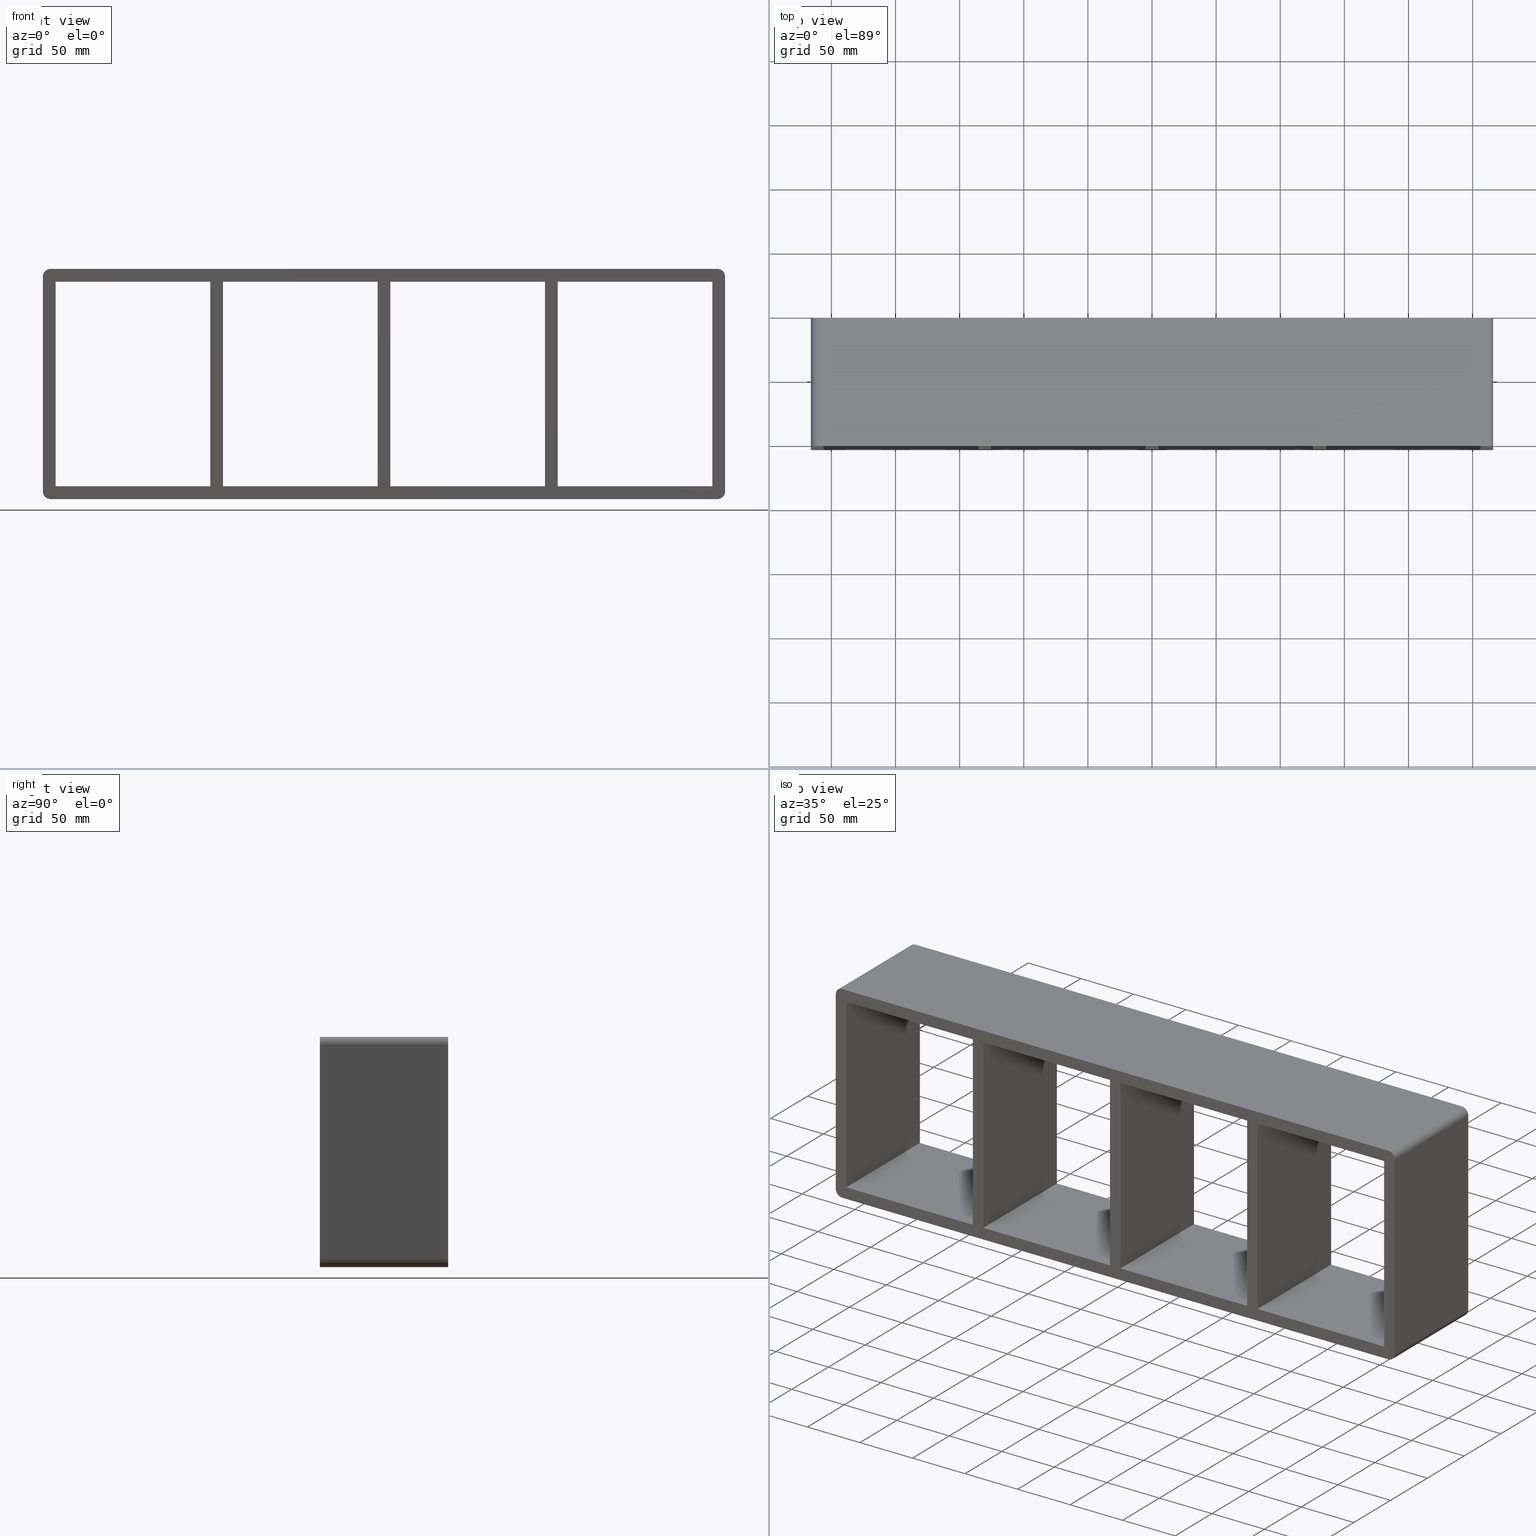
[diagram: canonical four-view strip — front | top / right | iso, engineering-drawing reading convention]
A machine part, canonical four-view strip (front | top / right | iso — engineering-drawing reading convention). The complete STEP part file that produces these views, byte-faithful:
ISO-10303-21;
HEADER;
/****************************************************************
 * Generated by software with PDElib inside                    *
 * PDElib Version v51a, created Wed 11/30/2011                  *
 * ITI Transcendata (http://www.transcendata.com/)              *
 ****************************************************************/
FILE_DESCRIPTION((''),'2;1');
FILE_NAME('C:\\RoxtecConfigurator\\CreatedFiles\\STEP\\SK4X4.stp','2013-01-29T16:34:10',(''),(''),'Autodesk Inventor 2013','Autodesk Inventor 2013','');
FILE_SCHEMA(('AUTOMOTIVE_DESIGN { 1 0 10303 214 1 1 1 1 }'));
ENDSEC;
DATA;
#5=APPLICATION_CONTEXT('automotive design');
#6=APPLICATION_PROTOCOL_DEFINITION('International Standard','automotive_design',2001,#5);
#7=PRODUCT_CONTEXT('',#5,'mechanical');
#8=PRODUCT('roxtec S_SF_G','roxtec S_SF_G',$,(#7));
#9=PRODUCT_RELATED_PRODUCT_CATEGORY('part',$,(#8));
#10=PRODUCT_DEFINITION_FORMATION('',$,#8);
#11=PRODUCT_DEFINITION_CONTEXT('part definition',#5,'design');
#12=PRODUCT_DEFINITION('',$,#10,#11);
#18=(NAMED_UNIT(*)PLANE_ANGLE_UNIT()SI_UNIT($,.RADIAN.));
#19=DIMENSIONAL_EXPONENTS(0.0,0.0,0.0,0.0,0.0,0.0,0.0);
#20=PLANE_ANGLE_MEASURE_WITH_UNIT(PLANE_ANGLE_MEASURE(0.0174532925),#18);
#24=(CONVERSION_BASED_UNIT('DEGREE',#20)NAMED_UNIT(#19)PLANE_ANGLE_UNIT());
#28=(NAMED_UNIT(*)SI_UNIT($,.STERADIAN.)SOLID_ANGLE_UNIT());
#32=(LENGTH_UNIT()NAMED_UNIT(*)SI_UNIT(.MILLI.,.METRE.));
#34=UNCERTAINTY_MEASURE_WITH_UNIT(LENGTH_MEASURE(0.01),#32,'DISTANCE_ACCURACY_VALUE','');
#36=(GEOMETRIC_REPRESENTATION_CONTEXT(3)GLOBAL_UNCERTAINTY_ASSIGNED_CONTEXT((#34))GLOBAL_UNIT_ASSIGNED_CONTEXT((#24,#28,#32))REPRESENTATION_CONTEXT('None','None'));
#37=AXIS2_PLACEMENT_3D('',#38,#39,#40);
#38=CARTESIAN_POINT('',(0.0,0.0,0.0));
#39=DIRECTION('',(0.0,0.0,1.0));
#40=DIRECTION('',(1.0,0.0,0.0));
#41=SHAPE_REPRESENTATION('',(#37),#36);
#42=PRODUCT_DEFINITION_SHAPE('','',#12);
#43=SHAPE_DEFINITION_REPRESENTATION(#42,#41);
#49=(NAMED_UNIT(*)PLANE_ANGLE_UNIT()SI_UNIT($,.RADIAN.));
#50=DIMENSIONAL_EXPONENTS(0.0,0.0,0.0,0.0,0.0,0.0,0.0);
#51=PLANE_ANGLE_MEASURE_WITH_UNIT(PLANE_ANGLE_MEASURE(0.0174532925),#49);
#55=(CONVERSION_BASED_UNIT('DEGREE',#51)NAMED_UNIT(#50)PLANE_ANGLE_UNIT());
#59=(NAMED_UNIT(*)SI_UNIT($,.STERADIAN.)SOLID_ANGLE_UNIT());
#63=(LENGTH_UNIT()NAMED_UNIT(*)SI_UNIT(.MILLI.,.METRE.));
#65=UNCERTAINTY_MEASURE_WITH_UNIT(LENGTH_MEASURE(0.000001),#63,'DISTANCE_ACCURACY_VALUE','');
#67=(GEOMETRIC_REPRESENTATION_CONTEXT(3)GLOBAL_UNCERTAINTY_ASSIGNED_CONTEXT((#65))GLOBAL_UNIT_ASSIGNED_CONTEXT((#55,#59,#63))REPRESENTATION_CONTEXT('','3D'));
#68=CARTESIAN_POINT('',(125.49999999998295,-3.0,-79.750000000000014));
#69=DIRECTION('',(-1.0,0.0,0.0));
#70=DIRECTION('',(0.0,0.0,1.0));
#71=AXIS2_PLACEMENT_3D('',#68,#69,#70);
#72=PLANE('',#71);
#73=CARTESIAN_POINT('',(125.49999999998295,-3.0,-79.750000000000014));
#74=VERTEX_POINT('',#73);
#75=CARTESIAN_POINT('',(125.4999999999829,-3.0,79.750000000000014));
#76=VERTEX_POINT('',#75);
#77=CARTESIAN_POINT('',(125.49999999998295,-3.0,-79.750000000000014));
#78=DIRECTION('',(0.0,0.0,1.0));
#79=VECTOR('',#78,159.50000000000003);
#80=LINE('',#77,#79);
#81=EDGE_CURVE('',#74,#76,#80,.T.);
#82=ORIENTED_EDGE('',*,*,#81,.T.);
#83=CARTESIAN_POINT('',(125.4999999999829,97.0,79.750000000000014));
#84=VERTEX_POINT('',#83);
#85=CARTESIAN_POINT('',(125.4999999999829,97.0,79.750000000000014));
#86=DIRECTION('',(0.0,-1.0,0.0));
#87=VECTOR('',#86,100.0);
#88=LINE('',#85,#87);
#89=EDGE_CURVE('',#84,#76,#88,.T.);
#90=ORIENTED_EDGE('',*,*,#89,.F.);
#91=CARTESIAN_POINT('',(125.49999999998295,97.0,-79.750000000000014));
#92=VERTEX_POINT('',#91);
#93=CARTESIAN_POINT('',(125.49999999998295,97.0,-79.750000000000014));
#94=DIRECTION('',(0.0,0.0,1.0));
#95=VECTOR('',#94,159.50000000000003);
#96=LINE('',#93,#95);
#97=EDGE_CURVE('',#92,#84,#96,.T.);
#98=ORIENTED_EDGE('',*,*,#97,.F.);
#99=CARTESIAN_POINT('',(125.49999999998295,-3.0,-79.750000000000014));
#100=DIRECTION('',(0.0,1.0,0.0));
#101=VECTOR('',#100,100.0);
#102=LINE('',#99,#101);
#103=EDGE_CURVE('',#74,#92,#102,.T.);
#104=ORIENTED_EDGE('',*,*,#103,.F.);
#105=EDGE_LOOP('',(#82,#90,#98,#104));
#106=FACE_OUTER_BOUND('',#105,.T.);
#107=ADVANCED_FACE('',(#106),#72,.T.);
#108=CARTESIAN_POINT('',(135.49999999999363,-3.0,79.750000000000014));
#109=DIRECTION('',(1.0,0.0,0.0));
#110=DIRECTION('',(0.0,0.0,-1.0));
#111=AXIS2_PLACEMENT_3D('',#108,#109,#110);
#112=PLANE('',#111);
#113=CARTESIAN_POINT('',(135.49999999999363,-3.0,79.750000000000014));
#114=VERTEX_POINT('',#113);
#115=CARTESIAN_POINT('',(135.49999999999591,-3.0,-79.749999999998465));
#116=VERTEX_POINT('',#115);
#117=CARTESIAN_POINT('',(135.49999999999363,-3.0,79.750000000000014));
#118=DIRECTION('',(0.0,0.0,-1.0));
#119=VECTOR('',#118,159.49999999999847);
#120=LINE('',#117,#119);
#121=EDGE_CURVE('',#114,#116,#120,.T.);
#122=ORIENTED_EDGE('',*,*,#121,.T.);
#123=CARTESIAN_POINT('',(135.49999999999591,97.0,-79.749999999998451));
#124=VERTEX_POINT('',#123);
#125=CARTESIAN_POINT('',(135.49999999999591,97.0,-79.750000000000014));
#126=DIRECTION('',(0.0,-1.0,0.0));
#127=VECTOR('',#126,100.0);
#128=LINE('',#125,#127);
#129=EDGE_CURVE('',#124,#116,#128,.T.);
#130=ORIENTED_EDGE('',*,*,#129,.F.);
#131=CARTESIAN_POINT('',(135.49999999999363,97.0,79.750000000000014));
#132=VERTEX_POINT('',#131);
#133=CARTESIAN_POINT('',(135.49999999999363,97.0,79.750000000000014));
#134=DIRECTION('',(0.0,0.0,-1.0));
#135=VECTOR('',#134,159.49999999999847);
#136=LINE('',#133,#135);
#137=EDGE_CURVE('',#132,#124,#136,.T.);
#138=ORIENTED_EDGE('',*,*,#137,.F.);
#139=CARTESIAN_POINT('',(135.49999999999363,-3.0,79.750000000000014));
#140=DIRECTION('',(0.0,1.0,0.0));
#141=VECTOR('',#140,100.0);
#142=LINE('',#139,#141);
#143=EDGE_CURVE('',#114,#132,#142,.T.);
#144=ORIENTED_EDGE('',*,*,#143,.F.);
#145=EDGE_LOOP('',(#122,#130,#138,#144));
#146=FACE_OUTER_BOUND('',#145,.T.);
#147=ADVANCED_FACE('',(#146),#112,.T.);
#148=CARTESIAN_POINT('',(-5.000000000017053,-3.0,-79.750000000000014));
#149=DIRECTION('',(-1.0,0.0,0.0));
#150=DIRECTION('',(0.0,0.0,1.0));
#151=AXIS2_PLACEMENT_3D('',#148,#149,#150);
#152=PLANE('',#151);
#153=CARTESIAN_POINT('',(-5.000000000017053,-3.0,-79.750000000000014));
#154=VERTEX_POINT('',#153);
#155=CARTESIAN_POINT('',(-5.000000000017106,-3.0,79.750000000000014));
#156=VERTEX_POINT('',#155);
#157=CARTESIAN_POINT('',(-5.000000000017053,-3.0,-79.750000000000014));
#158=DIRECTION('',(0.0,0.0,1.0));
#159=VECTOR('',#158,159.50000000000003);
#160=LINE('',#157,#159);
#161=EDGE_CURVE('',#154,#156,#160,.T.);
#162=ORIENTED_EDGE('',*,*,#161,.T.);
#163=CARTESIAN_POINT('',(-5.000000000017106,97.0,79.750000000000014));
#164=VERTEX_POINT('',#163);
#165=CARTESIAN_POINT('',(-5.000000000017115,97.0,79.750000000000014));
#166=DIRECTION('',(0.0,-1.0,0.0));
#167=VECTOR('',#166,100.0);
#168=LINE('',#165,#167);
#169=EDGE_CURVE('',#164,#156,#168,.T.);
#170=ORIENTED_EDGE('',*,*,#169,.F.);
#171=CARTESIAN_POINT('',(-5.000000000017053,97.0,-79.750000000000014));
#172=VERTEX_POINT('',#171);
#173=CARTESIAN_POINT('',(-5.000000000017053,97.0,-79.750000000000014));
#174=DIRECTION('',(0.0,0.0,1.0));
#175=VECTOR('',#174,159.50000000000003);
#176=LINE('',#173,#175);
#177=EDGE_CURVE('',#172,#164,#176,.T.);
#178=ORIENTED_EDGE('',*,*,#177,.F.);
#179=CARTESIAN_POINT('',(-5.000000000017053,-3.0,-79.750000000000014));
#180=DIRECTION('',(0.0,1.0,0.0));
#181=VECTOR('',#180,100.0);
#182=LINE('',#179,#181);
#183=EDGE_CURVE('',#154,#172,#182,.T.);
#184=ORIENTED_EDGE('',*,*,#183,.F.);
#185=EDGE_LOOP('',(#162,#170,#178,#184));
#186=FACE_OUTER_BOUND('',#185,.T.);
#187=ADVANCED_FACE('',(#186),#152,.T.);
#188=CARTESIAN_POINT('',(4.999999999993641,-3.0,79.750000000000014));
#189=DIRECTION('',(1.0,0.0,0.0));
#190=DIRECTION('',(0.0,0.0,-1.0));
#191=AXIS2_PLACEMENT_3D('',#188,#189,#190);
#192=PLANE('',#191);
#193=CARTESIAN_POINT('',(4.999999999993641,-3.0,79.750000000000014));
#194=VERTEX_POINT('',#193);
#195=CARTESIAN_POINT('',(4.999999999995914,-3.0,-79.749999999998465));
#196=VERTEX_POINT('',#195);
#197=CARTESIAN_POINT('',(4.999999999993641,-3.0,79.750000000000014));
#198=DIRECTION('',(0.0,0.0,-1.0));
#199=VECTOR('',#198,159.49999999999847);
#200=LINE('',#197,#199);
#201=EDGE_CURVE('',#194,#196,#200,.T.);
#202=ORIENTED_EDGE('',*,*,#201,.T.);
#203=CARTESIAN_POINT('',(4.999999999995914,97.0,-79.749999999998451));
#204=VERTEX_POINT('',#203);
#205=CARTESIAN_POINT('',(4.999999999995914,97.0,-79.750000000000014));
#206=DIRECTION('',(0.0,-1.0,0.0));
#207=VECTOR('',#206,100.0);
#208=LINE('',#205,#207);
#209=EDGE_CURVE('',#204,#196,#208,.T.);
#210=ORIENTED_EDGE('',*,*,#209,.F.);
#211=CARTESIAN_POINT('',(4.999999999993641,97.0,79.750000000000014));
#212=VERTEX_POINT('',#211);
#213=CARTESIAN_POINT('',(4.999999999993641,97.0,79.750000000000014));
#214=DIRECTION('',(0.0,0.0,-1.0));
#215=VECTOR('',#214,159.49999999999847);
#216=LINE('',#213,#215);
#217=EDGE_CURVE('',#212,#204,#216,.T.);
#218=ORIENTED_EDGE('',*,*,#217,.F.);
#219=CARTESIAN_POINT('',(4.999999999993641,-3.0,79.750000000000014));
#220=DIRECTION('',(0.0,1.0,0.0));
#221=VECTOR('',#220,100.0);
#222=LINE('',#219,#221);
#223=EDGE_CURVE('',#194,#212,#222,.T.);
#224=ORIENTED_EDGE('',*,*,#223,.F.);
#225=EDGE_LOOP('',(#202,#210,#218,#224));
#226=FACE_OUTER_BOUND('',#225,.T.);
#227=ADVANCED_FACE('',(#226),#192,.T.);
#228=CARTESIAN_POINT('',(256.00000000000006,0.0,-79.750000000000014));
#229=DIRECTION('',(0.0,0.0,-1.0));
#230=DIRECTION('',(-1.0,0.0,0.0));
#231=AXIS2_PLACEMENT_3D('',#228,#229,#230);
#232=PLANE('',#231);
#233=ORIENTED_EDGE('',*,*,#183,.T.);
#234=CARTESIAN_POINT('',(-125.50000000000409,97.0,-79.749999999998451));
#235=VERTEX_POINT('',#234);
#236=CARTESIAN_POINT('',(-125.50000000000412,97.0,-79.750000000000014));
#237=DIRECTION('',(1.0,0.0,0.0));
#238=VECTOR('',#237,120.49999999998707);
#239=LINE('',#236,#238);
#240=EDGE_CURVE('',#235,#172,#239,.T.);
#241=ORIENTED_EDGE('',*,*,#240,.F.);
#242=CARTESIAN_POINT('',(-125.50000000000409,-3.0,-79.749999999998465));
#243=VERTEX_POINT('',#242);
#244=CARTESIAN_POINT('',(-125.50000000000411,97.0,-79.750000000000014));
#245=DIRECTION('',(0.0,-1.0,0.0));
#246=VECTOR('',#245,100.0);
#247=LINE('',#244,#246);
#248=EDGE_CURVE('',#235,#243,#247,.T.);
#249=ORIENTED_EDGE('',*,*,#248,.T.);
#250=CARTESIAN_POINT('',(-5.000000000017053,-3.0,-79.750000000000014));
#251=DIRECTION('',(-1.0,0.0,0.0));
#252=VECTOR('',#251,120.49999999998707);
#253=LINE('',#250,#252);
#254=EDGE_CURVE('',#154,#243,#253,.T.);
#255=ORIENTED_EDGE('',*,*,#254,.F.);
#256=EDGE_LOOP('',(#233,#241,#249,#255));
#257=FACE_OUTER_BOUND('',#256,.T.);
#258=ADVANCED_FACE('',(#257),#232,.F.);
#259=CARTESIAN_POINT('',(256.00000000000006,0.0,-79.750000000000014));
#260=DIRECTION('',(0.0,0.0,-1.0));
#261=DIRECTION('',(-1.0,0.0,0.0));
#262=AXIS2_PLACEMENT_3D('',#259,#260,#261);
#263=PLANE('',#262);
#264=ORIENTED_EDGE('',*,*,#103,.T.);
#265=CARTESIAN_POINT('',(4.999999999995922,97.0,-79.750000000000014));
#266=DIRECTION('',(1.0,0.0,0.0));
#267=VECTOR('',#266,120.49999999998704);
#268=LINE('',#265,#267);
#269=EDGE_CURVE('',#204,#92,#268,.T.);
#270=ORIENTED_EDGE('',*,*,#269,.F.);
#271=ORIENTED_EDGE('',*,*,#209,.T.);
#272=CARTESIAN_POINT('',(125.49999999998296,-3.0,-79.750000000000014));
#273=DIRECTION('',(-1.0,0.0,0.0));
#274=VECTOR('',#273,120.49999999998704);
#275=LINE('',#272,#274);
#276=EDGE_CURVE('',#74,#196,#275,.T.);
#277=ORIENTED_EDGE('',*,*,#276,.F.);
#278=EDGE_LOOP('',(#264,#270,#271,#277));
#279=FACE_OUTER_BOUND('',#278,.T.);
#280=ADVANCED_FACE('',(#279),#263,.F.);
#281=CARTESIAN_POINT('',(256.00000000000006,0.0,-79.750000000000014));
#282=DIRECTION('',(0.0,0.0,-1.0));
#283=DIRECTION('',(-1.0,0.0,0.0));
#284=AXIS2_PLACEMENT_3D('',#281,#282,#283);
#285=PLANE('',#284);
#286=ORIENTED_EDGE('',*,*,#129,.T.);
#287=CARTESIAN_POINT('',(256.00000000000006,-3.0,-79.750000000000014));
#288=VERTEX_POINT('',#287);
#289=CARTESIAN_POINT('',(256.00000000000006,-3.0,-79.750000000000014));
#290=DIRECTION('',(-1.0,0.0,0.0));
#291=VECTOR('',#290,120.50000000000412);
#292=LINE('',#289,#291);
#293=EDGE_CURVE('',#288,#116,#292,.T.);
#294=ORIENTED_EDGE('',*,*,#293,.F.);
#295=CARTESIAN_POINT('',(256.00000000000006,97.0,-79.750000000000014));
#296=VERTEX_POINT('',#295);
#297=CARTESIAN_POINT('',(256.00000000000006,97.0,-79.750000000000014));
#298=DIRECTION('',(0.0,-1.0,0.0));
#299=VECTOR('',#298,100.0);
#300=LINE('',#297,#299);
#301=EDGE_CURVE('',#296,#288,#300,.T.);
#302=ORIENTED_EDGE('',*,*,#301,.F.);
#303=CARTESIAN_POINT('',(135.49999999999594,97.0,-79.750000000000014));
#304=DIRECTION('',(1.0,0.0,0.0));
#305=VECTOR('',#304,120.50000000000412);
#306=LINE('',#303,#305);
#307=EDGE_CURVE('',#124,#296,#306,.T.);
#308=ORIENTED_EDGE('',*,*,#307,.F.);
#309=EDGE_LOOP('',(#286,#294,#302,#308));
#310=FACE_OUTER_BOUND('',#309,.T.);
#311=ADVANCED_FACE('',(#310),#285,.F.);
#312=CARTESIAN_POINT('',(-256.00000000000006,0.0,79.750000000000014));
#313=DIRECTION('',(0.0,0.0,1.0));
#314=DIRECTION('',(1.0,0.0,0.0));
#315=AXIS2_PLACEMENT_3D('',#312,#313,#314);
#316=PLANE('',#315);
#317=ORIENTED_EDGE('',*,*,#169,.T.);
#318=CARTESIAN_POINT('',(-125.50000000000637,-3.0,79.750000000000014));
#319=VERTEX_POINT('',#318);
#320=CARTESIAN_POINT('',(-125.50000000000637,-3.0,79.750000000000014));
#321=DIRECTION('',(1.0,0.0,0.0));
#322=VECTOR('',#321,120.49999999998926);
#323=LINE('',#320,#322);
#324=EDGE_CURVE('',#319,#156,#323,.T.);
#325=ORIENTED_EDGE('',*,*,#324,.F.);
#326=CARTESIAN_POINT('',(-125.50000000000637,97.0,79.750000000000014));
#327=VERTEX_POINT('',#326);
#328=CARTESIAN_POINT('',(-125.50000000000638,-3.0,79.750000000000014));
#329=DIRECTION('',(0.0,1.0,0.0));
#330=VECTOR('',#329,100.0);
#331=LINE('',#328,#330);
#332=EDGE_CURVE('',#319,#327,#331,.T.);
#333=ORIENTED_EDGE('',*,*,#332,.T.);
#334=CARTESIAN_POINT('',(-5.00000000001711,97.0,79.750000000000014));
#335=DIRECTION('',(-1.0,0.0,0.0));
#336=VECTOR('',#335,120.49999999998926);
#337=LINE('',#334,#336);
#338=EDGE_CURVE('',#164,#327,#337,.T.);
#339=ORIENTED_EDGE('',*,*,#338,.F.);
#340=EDGE_LOOP('',(#317,#325,#333,#339));
#341=FACE_OUTER_BOUND('',#340,.T.);
#342=ADVANCED_FACE('',(#341),#316,.F.);
#343=CARTESIAN_POINT('',(-256.00000000000006,0.0,79.750000000000014));
#344=DIRECTION('',(0.0,0.0,1.0));
#345=DIRECTION('',(1.0,0.0,0.0));
#346=AXIS2_PLACEMENT_3D('',#343,#344,#345);
#347=PLANE('',#346);
#348=ORIENTED_EDGE('',*,*,#143,.T.);
#349=CARTESIAN_POINT('',(256.00000000000006,97.0,79.750000000000014));
#350=VERTEX_POINT('',#349);
#351=CARTESIAN_POINT('',(256.0,97.0,79.750000000000014));
#352=DIRECTION('',(-1.0,0.0,0.0));
#353=VECTOR('',#352,120.50000000000634);
#354=LINE('',#351,#353);
#355=EDGE_CURVE('',#350,#132,#354,.T.);
#356=ORIENTED_EDGE('',*,*,#355,.F.);
#357=CARTESIAN_POINT('',(256.00000000000006,-3.0,79.750000000000014));
#358=VERTEX_POINT('',#357);
#359=CARTESIAN_POINT('',(256.00000000000006,-3.0,79.750000000000014));
#360=DIRECTION('',(0.0,1.0,0.0));
#361=VECTOR('',#360,100.0);
#362=LINE('',#359,#361);
#363=EDGE_CURVE('',#358,#350,#362,.T.);
#364=ORIENTED_EDGE('',*,*,#363,.F.);
#365=CARTESIAN_POINT('',(135.49999999999366,-3.0,79.750000000000014));
#366=DIRECTION('',(1.0,0.0,0.0));
#367=VECTOR('',#366,120.50000000000634);
#368=LINE('',#365,#367);
#369=EDGE_CURVE('',#114,#358,#368,.T.);
#370=ORIENTED_EDGE('',*,*,#369,.F.);
#371=EDGE_LOOP('',(#348,#356,#364,#370));
#372=FACE_OUTER_BOUND('',#371,.T.);
#373=ADVANCED_FACE('',(#372),#347,.F.);
#374=CARTESIAN_POINT('',(-256.00000000000006,0.0,79.750000000000014));
#375=DIRECTION('',(0.0,0.0,1.0));
#376=DIRECTION('',(1.0,0.0,0.0));
#377=AXIS2_PLACEMENT_3D('',#374,#375,#376);
#378=PLANE('',#377);
#379=ORIENTED_EDGE('',*,*,#89,.T.);
#380=CARTESIAN_POINT('',(4.999999999993634,-3.0,79.750000000000014));
#381=DIRECTION('',(1.0,0.0,0.0));
#382=VECTOR('',#381,120.49999999998926);
#383=LINE('',#380,#382);
#384=EDGE_CURVE('',#194,#76,#383,.T.);
#385=ORIENTED_EDGE('',*,*,#384,.F.);
#386=ORIENTED_EDGE('',*,*,#223,.T.);
#387=CARTESIAN_POINT('',(125.49999999998289,97.0,79.750000000000014));
#388=DIRECTION('',(-1.0,0.0,0.0));
#389=VECTOR('',#388,120.49999999998926);
#390=LINE('',#387,#389);
#391=EDGE_CURVE('',#84,#212,#390,.T.);
#392=ORIENTED_EDGE('',*,*,#391,.F.);
#393=EDGE_LOOP('',(#379,#385,#386,#392));
#394=FACE_OUTER_BOUND('',#393,.T.);
#395=ADVANCED_FACE('',(#394),#378,.F.);
#396=CARTESIAN_POINT('',(-135.50000000001705,-3.0,-79.750000000000014));
#397=DIRECTION('',(-1.0,0.0,0.0));
#398=DIRECTION('',(0.0,0.0,1.0));
#399=AXIS2_PLACEMENT_3D('',#396,#397,#398);
#400=PLANE('',#399);
#401=CARTESIAN_POINT('',(-135.50000000001705,-3.0,-79.750000000000014));
#402=VERTEX_POINT('',#401);
#403=CARTESIAN_POINT('',(-135.50000000001711,-3.0,79.750000000000014));
#404=VERTEX_POINT('',#403);
#405=CARTESIAN_POINT('',(-135.50000000001705,-3.0,-79.750000000000014));
#406=DIRECTION('',(0.0,0.0,1.0));
#407=VECTOR('',#406,159.50000000000003);
#408=LINE('',#405,#407);
#409=EDGE_CURVE('',#402,#404,#408,.T.);
#410=ORIENTED_EDGE('',*,*,#409,.T.);
#411=CARTESIAN_POINT('',(-135.50000000001711,97.0,79.750000000000014));
#412=VERTEX_POINT('',#411);
#413=CARTESIAN_POINT('',(-135.50000000001711,97.0,79.750000000000014));
#414=DIRECTION('',(0.0,-1.0,0.0));
#415=VECTOR('',#414,100.0);
#416=LINE('',#413,#415);
#417=EDGE_CURVE('',#412,#404,#416,.T.);
#418=ORIENTED_EDGE('',*,*,#417,.F.);
#419=CARTESIAN_POINT('',(-135.50000000001705,97.0,-79.750000000000014));
#420=VERTEX_POINT('',#419);
#421=CARTESIAN_POINT('',(-135.50000000001705,97.0,-79.750000000000014));
#422=DIRECTION('',(0.0,0.0,1.0));
#423=VECTOR('',#422,159.50000000000003);
#424=LINE('',#421,#423);
#425=EDGE_CURVE('',#420,#412,#424,.T.);
#426=ORIENTED_EDGE('',*,*,#425,.F.);
#427=CARTESIAN_POINT('',(-135.50000000001705,-3.0,-79.750000000000014));
#428=DIRECTION('',(0.0,1.0,0.0));
#429=VECTOR('',#428,100.0);
#430=LINE('',#427,#429);
#431=EDGE_CURVE('',#402,#420,#430,.T.);
#432=ORIENTED_EDGE('',*,*,#431,.F.);
#433=EDGE_LOOP('',(#410,#418,#426,#432));
#434=FACE_OUTER_BOUND('',#433,.T.);
#435=ADVANCED_FACE('',(#434),#400,.T.);
#436=CARTESIAN_POINT('',(-125.50000000000637,-3.0,79.750000000000014));
#437=DIRECTION('',(1.0,0.0,0.0));
#438=DIRECTION('',(0.0,0.0,-1.0));
#439=AXIS2_PLACEMENT_3D('',#436,#437,#438);
#440=PLANE('',#439);
#441=CARTESIAN_POINT('',(-125.50000000000637,-3.0,79.750000000000014));
#442=DIRECTION('',(0.0,0.0,-1.0));
#443=VECTOR('',#442,159.49999999999847);
#444=LINE('',#441,#443);
#445=EDGE_CURVE('',#319,#243,#444,.T.);
#446=ORIENTED_EDGE('',*,*,#445,.T.);
#447=ORIENTED_EDGE('',*,*,#248,.F.);
#448=CARTESIAN_POINT('',(-125.50000000000637,97.0,79.750000000000014));
#449=DIRECTION('',(0.0,0.0,-1.0));
#450=VECTOR('',#449,159.49999999999847);
#451=LINE('',#448,#450);
#452=EDGE_CURVE('',#327,#235,#451,.T.);
#453=ORIENTED_EDGE('',*,*,#452,.F.);
#454=ORIENTED_EDGE('',*,*,#332,.F.);
#455=EDGE_LOOP('',(#446,#447,#453,#454));
#456=FACE_OUTER_BOUND('',#455,.T.);
#457=ADVANCED_FACE('',(#456),#440,.T.);
#458=CARTESIAN_POINT('',(256.00000000000006,0.0,-79.750000000000014));
#459=DIRECTION('',(0.0,0.0,-1.0));
#460=DIRECTION('',(-1.0,0.0,0.0));
#461=AXIS2_PLACEMENT_3D('',#458,#459,#460);
#462=PLANE('',#461);
#463=ORIENTED_EDGE('',*,*,#431,.T.);
#464=CARTESIAN_POINT('',(-256.00000000000006,97.0,-79.750000000000014));
#465=VERTEX_POINT('',#464);
#466=CARTESIAN_POINT('',(-256.0,97.0,-79.750000000000014));
#467=DIRECTION('',(1.0,0.0,0.0));
#468=VECTOR('',#467,120.49999999998298);
#469=LINE('',#466,#468);
#470=EDGE_CURVE('',#465,#420,#469,.T.);
#471=ORIENTED_EDGE('',*,*,#470,.F.);
#472=CARTESIAN_POINT('',(-256.00000000000006,-3.0,-79.750000000000014));
#473=VERTEX_POINT('',#472);
#474=CARTESIAN_POINT('',(-256.00000000000006,-3.0,-79.750000000000014));
#475=DIRECTION('',(0.0,1.0,0.0));
#476=VECTOR('',#475,100.0);
#477=LINE('',#474,#476);
#478=EDGE_CURVE('',#473,#465,#477,.T.);
#479=ORIENTED_EDGE('',*,*,#478,.F.);
#480=CARTESIAN_POINT('',(-135.50000000001702,-3.0,-79.750000000000014));
#481=DIRECTION('',(-1.0,0.0,0.0));
#482=VECTOR('',#481,120.49999999998298);
#483=LINE('',#480,#482);
#484=EDGE_CURVE('',#402,#473,#483,.T.);
#485=ORIENTED_EDGE('',*,*,#484,.F.);
#486=EDGE_LOOP('',(#463,#471,#479,#485));
#487=FACE_OUTER_BOUND('',#486,.T.);
#488=ADVANCED_FACE('',(#487),#462,.F.);
#489=CARTESIAN_POINT('',(-256.00000000000006,0.0,79.750000000000014));
#490=DIRECTION('',(0.0,0.0,1.0));
#491=DIRECTION('',(1.0,0.0,0.0));
#492=AXIS2_PLACEMENT_3D('',#489,#490,#491);
#493=PLANE('',#492);
#494=ORIENTED_EDGE('',*,*,#417,.T.);
#495=CARTESIAN_POINT('',(-256.00000000000006,-3.0,79.750000000000014));
#496=VERTEX_POINT('',#495);
#497=CARTESIAN_POINT('',(-256.00000000000006,-3.0,79.750000000000014));
#498=DIRECTION('',(1.0,0.0,0.0));
#499=VECTOR('',#498,120.49999999998295);
#500=LINE('',#497,#499);
#501=EDGE_CURVE('',#496,#404,#500,.T.);
#502=ORIENTED_EDGE('',*,*,#501,.F.);
#503=CARTESIAN_POINT('',(-256.00000000000006,97.0,79.750000000000014));
#504=VERTEX_POINT('',#503);
#505=CARTESIAN_POINT('',(-256.00000000000006,-3.0,79.750000000000014));
#506=DIRECTION('',(0.0,1.0,0.0));
#507=VECTOR('',#506,100.0);
#508=LINE('',#505,#507);
#509=EDGE_CURVE('',#496,#504,#508,.T.);
#510=ORIENTED_EDGE('',*,*,#509,.T.);
#511=CARTESIAN_POINT('',(-135.50000000001711,97.0,79.750000000000014));
#512=DIRECTION('',(-1.0,0.0,0.0));
#513=VECTOR('',#512,120.49999999998295);
#514=LINE('',#511,#513);
#515=EDGE_CURVE('',#412,#504,#514,.T.);
#516=ORIENTED_EDGE('',*,*,#515,.F.);
#517=EDGE_LOOP('',(#494,#502,#510,#516));
#518=FACE_OUTER_BOUND('',#517,.T.);
#519=ADVANCED_FACE('',(#518),#493,.F.);
#520=CARTESIAN_POINT('',(256.00000000000006,0.0,79.750000000000014));
#521=DIRECTION('',(1.0,0.0,0.0));
#522=DIRECTION('',(0.0,0.0,-1.0));
#523=AXIS2_PLACEMENT_3D('',#520,#521,#522);
#524=PLANE('',#523);
#525=ORIENTED_EDGE('',*,*,#301,.T.);
#526=CARTESIAN_POINT('',(256.00000000000006,-3.0,79.750000000000014));
#527=DIRECTION('',(0.0,0.0,-1.0));
#528=VECTOR('',#527,159.50000000000006);
#529=LINE('',#526,#528);
#530=EDGE_CURVE('',#358,#288,#529,.T.);
#531=ORIENTED_EDGE('',*,*,#530,.F.);
#532=ORIENTED_EDGE('',*,*,#363,.T.);
#533=CARTESIAN_POINT('',(256.00000000000006,97.0,-79.750000000000028));
#534=DIRECTION('',(0.0,0.0,1.0));
#535=VECTOR('',#534,159.50000000000006);
#536=LINE('',#533,#535);
#537=EDGE_CURVE('',#296,#350,#536,.T.);
#538=ORIENTED_EDGE('',*,*,#537,.F.);
#539=EDGE_LOOP('',(#525,#531,#532,#538));
#540=FACE_OUTER_BOUND('',#539,.T.);
#541=ADVANCED_FACE('',(#540),#524,.F.);
#542=CARTESIAN_POINT('',(-256.00000000000006,0.0,-79.750000000000014));
#543=DIRECTION('',(-1.0,0.0,0.0));
#544=DIRECTION('',(0.0,0.0,1.0));
#545=AXIS2_PLACEMENT_3D('',#542,#543,#544);
#546=PLANE('',#545);
#547=ORIENTED_EDGE('',*,*,#509,.F.);
#548=CARTESIAN_POINT('',(-256.00000000000006,-3.0,-79.750000000000014));
#549=DIRECTION('',(0.0,0.0,1.0));
#550=VECTOR('',#549,159.50000000000006);
#551=LINE('',#548,#550);
#552=EDGE_CURVE('',#473,#496,#551,.T.);
#553=ORIENTED_EDGE('',*,*,#552,.F.);
#554=ORIENTED_EDGE('',*,*,#478,.T.);
#555=CARTESIAN_POINT('',(-256.00000000000006,97.0,79.750000000000028));
#556=DIRECTION('',(0.0,0.0,-1.0));
#557=VECTOR('',#556,159.50000000000006);
#558=LINE('',#555,#557);
#559=EDGE_CURVE('',#504,#465,#558,.T.);
#560=ORIENTED_EDGE('',*,*,#559,.F.);
#561=EDGE_LOOP('',(#547,#553,#554,#560));
#562=FACE_OUTER_BOUND('',#561,.T.);
#563=ADVANCED_FACE('',(#562),#546,.F.);
#564=CARTESIAN_POINT('',(-1.481063E-014,-3.0,-1.044339E-015));
#565=DIRECTION('',(0.0,-1.0,0.0));
#566=DIRECTION('',(0.0,0.0,-1.0));
#567=AXIS2_PLACEMENT_3D('',#564,#565,#566);
#568=PLANE('',#567);
#569=CARTESIAN_POINT('',(266.00000000000006,-3.0,-83.75));
#570=VERTEX_POINT('',#569);
#571=CARTESIAN_POINT('',(266.00000000000006,-3.0,83.75));
#572=VERTEX_POINT('',#571);
#573=CARTESIAN_POINT('',(266.00000000000006,-3.0,-83.75));
#574=DIRECTION('',(0.0,0.0,1.0));
#575=VECTOR('',#574,167.5);
#576=LINE('',#573,#575);
#577=EDGE_CURVE('',#570,#572,#576,.T.);
#578=ORIENTED_EDGE('',*,*,#577,.T.);
#579=CARTESIAN_POINT('',(260.0,-3.0,89.750000000000014));
#580=VERTEX_POINT('',#579);
#581=CARTESIAN_POINT('',(260.0,-3.0,83.75));
#582=DIRECTION('',(0.0,-1.0,0.0));
#583=DIRECTION('',(0.0,0.0,1.0));
#584=AXIS2_PLACEMENT_3D('',#581,#582,#583);
#585=CIRCLE('',#584,6.000000000000001);
#586=EDGE_CURVE('',#572,#580,#585,.T.);
#587=ORIENTED_EDGE('',*,*,#586,.T.);
#588=CARTESIAN_POINT('',(-260.00000000000006,-3.0,89.750000000000014));
#589=VERTEX_POINT('',#588);
#590=CARTESIAN_POINT('',(260.00000000000006,-3.0,89.750000000000014));
#591=DIRECTION('',(-1.0,0.0,0.0));
#592=VECTOR('',#591,520.00000000000011);
#593=LINE('',#590,#592);
#594=EDGE_CURVE('',#580,#589,#593,.T.);
#595=ORIENTED_EDGE('',*,*,#594,.T.);
#596=CARTESIAN_POINT('',(-266.00000000000006,-3.0,83.75));
#597=VERTEX_POINT('',#596);
#598=CARTESIAN_POINT('',(-260.00000000000006,-3.0,83.75));
#599=DIRECTION('',(0.0,-1.0,0.0));
#600=DIRECTION('',(-1.0,0.0,0.0));
#601=AXIS2_PLACEMENT_3D('',#598,#599,#600);
#602=CIRCLE('',#601,6.000000000000001);
#603=EDGE_CURVE('',#589,#597,#602,.T.);
#604=ORIENTED_EDGE('',*,*,#603,.T.);
#605=CARTESIAN_POINT('',(-266.00000000000006,-3.0,-83.75));
#606=VERTEX_POINT('',#605);
#607=CARTESIAN_POINT('',(-266.00000000000006,-3.0,83.75));
#608=DIRECTION('',(0.0,0.0,-1.0));
#609=VECTOR('',#608,167.5);
#610=LINE('',#607,#609);
#611=EDGE_CURVE('',#597,#606,#610,.T.);
#612=ORIENTED_EDGE('',*,*,#611,.T.);
#613=CARTESIAN_POINT('',(-260.00000000000006,-3.0,-89.750000000000014));
#614=VERTEX_POINT('',#613);
#615=CARTESIAN_POINT('',(-260.00000000000006,-3.0,-83.75));
#616=DIRECTION('',(0.0,-1.0,0.0));
#617=DIRECTION('',(0.0,0.0,-1.0));
#618=AXIS2_PLACEMENT_3D('',#615,#616,#617);
#619=CIRCLE('',#618,6.000000000000001);
#620=EDGE_CURVE('',#606,#614,#619,.T.);
#621=ORIENTED_EDGE('',*,*,#620,.T.);
#622=CARTESIAN_POINT('',(260.0,-3.0,-89.750000000000014));
#623=VERTEX_POINT('',#622);
#624=CARTESIAN_POINT('',(-260.00000000000011,-3.0,-89.750000000000014));
#625=DIRECTION('',(1.0,0.0,0.0));
#626=VECTOR('',#625,520.00000000000011);
#627=LINE('',#624,#626);
#628=EDGE_CURVE('',#614,#623,#627,.T.);
#629=ORIENTED_EDGE('',*,*,#628,.T.);
#630=CARTESIAN_POINT('',(260.0,-3.0,-83.75));
#631=DIRECTION('',(0.0,-1.0,0.0));
#632=DIRECTION('',(1.0,0.0,0.0));
#633=AXIS2_PLACEMENT_3D('',#630,#631,#632);
#634=CIRCLE('',#633,6.0);
#635=EDGE_CURVE('',#623,#570,#634,.T.);
#636=ORIENTED_EDGE('',*,*,#635,.T.);
#637=EDGE_LOOP('',(#578,#587,#595,#604,#612,#621,#629,#636));
#638=FACE_OUTER_BOUND('',#637,.T.);
#639=ORIENTED_EDGE('',*,*,#276,.T.);
#640=ORIENTED_EDGE('',*,*,#201,.F.);
#641=ORIENTED_EDGE('',*,*,#384,.T.);
#642=ORIENTED_EDGE('',*,*,#81,.F.);
#643=EDGE_LOOP('',(#639,#640,#641,#642));
#644=FACE_BOUND('',#643,.T.);
#645=ORIENTED_EDGE('',*,*,#254,.T.);
#646=ORIENTED_EDGE('',*,*,#445,.F.);
#647=ORIENTED_EDGE('',*,*,#324,.T.);
#648=ORIENTED_EDGE('',*,*,#161,.F.);
#649=EDGE_LOOP('',(#645,#646,#647,#648));
#650=FACE_BOUND('',#649,.T.);
#651=ORIENTED_EDGE('',*,*,#484,.T.);
#652=ORIENTED_EDGE('',*,*,#552,.T.);
#653=ORIENTED_EDGE('',*,*,#501,.T.);
#654=ORIENTED_EDGE('',*,*,#409,.F.);
#655=EDGE_LOOP('',(#651,#652,#653,#654));
#656=FACE_BOUND('',#655,.T.);
#657=ORIENTED_EDGE('',*,*,#121,.F.);
#658=ORIENTED_EDGE('',*,*,#369,.T.);
#659=ORIENTED_EDGE('',*,*,#530,.T.);
#660=ORIENTED_EDGE('',*,*,#293,.T.);
#661=EDGE_LOOP('',(#657,#658,#659,#660));
#662=FACE_BOUND('',#661,.T.);
#663=ADVANCED_FACE('',(#638,#644,#650,#656,#662),#568,.T.);
#664=CARTESIAN_POINT('',(260.0,0.0,83.75));
#665=DIRECTION('',(0.0,1.0,0.0));
#666=DIRECTION('',(0.0,0.0,1.0));
#667=AXIS2_PLACEMENT_3D('',#664,#665,#666);
#668=CYLINDRICAL_SURFACE('',#667,6.000000000000001);
#669=CARTESIAN_POINT('',(266.00000000000006,97.0,83.75));
#670=VERTEX_POINT('',#669);
#671=CARTESIAN_POINT('',(266.00000000000006,97.0,83.75));
#672=DIRECTION('',(0.0,-1.0,0.0));
#673=VECTOR('',#672,100.0);
#674=LINE('',#671,#673);
#675=EDGE_CURVE('',#670,#572,#674,.T.);
#676=ORIENTED_EDGE('',*,*,#675,.F.);
#677=CARTESIAN_POINT('',(260.0,97.0,89.750000000000014));
#678=VERTEX_POINT('',#677);
#679=CARTESIAN_POINT('',(260.0,97.0,83.75));
#680=DIRECTION('',(0.0,1.0,0.0));
#681=DIRECTION('',(0.0,0.0,1.0));
#682=AXIS2_PLACEMENT_3D('',#679,#680,#681);
#683=CIRCLE('',#682,6.000000000000001);
#684=EDGE_CURVE('',#678,#670,#683,.T.);
#685=ORIENTED_EDGE('',*,*,#684,.F.);
#686=CARTESIAN_POINT('',(260.0,-3.0,89.750000000000014));
#687=DIRECTION('',(0.0,1.0,0.0));
#688=VECTOR('',#687,100.0);
#689=LINE('',#686,#688);
#690=EDGE_CURVE('',#580,#678,#689,.T.);
#691=ORIENTED_EDGE('',*,*,#690,.F.);
#692=ORIENTED_EDGE('',*,*,#586,.F.);
#693=EDGE_LOOP('',(#676,#685,#691,#692));
#694=FACE_OUTER_BOUND('',#693,.T.);
#695=ADVANCED_FACE('',(#694),#668,.T.);
#696=CARTESIAN_POINT('',(-260.00000000000006,0.0,89.750000000000014));
#697=DIRECTION('',(0.0,0.0,1.0));
#698=DIRECTION('',(1.0,0.0,0.0));
#699=AXIS2_PLACEMENT_3D('',#696,#697,#698);
#700=PLANE('',#699);
#701=ORIENTED_EDGE('',*,*,#690,.T.);
#702=CARTESIAN_POINT('',(-260.00000000000006,97.0,89.750000000000014));
#703=VERTEX_POINT('',#702);
#704=CARTESIAN_POINT('',(-260.00000000000006,97.0,89.750000000000014));
#705=DIRECTION('',(1.0,0.0,0.0));
#706=VECTOR('',#705,520.00000000000011);
#707=LINE('',#704,#706);
#708=EDGE_CURVE('',#703,#678,#707,.T.);
#709=ORIENTED_EDGE('',*,*,#708,.F.);
#710=CARTESIAN_POINT('',(-260.00000000000006,-3.0,89.750000000000014));
#711=DIRECTION('',(0.0,1.0,0.0));
#712=VECTOR('',#711,100.0);
#713=LINE('',#710,#712);
#714=EDGE_CURVE('',#589,#703,#713,.T.);
#715=ORIENTED_EDGE('',*,*,#714,.F.);
#716=ORIENTED_EDGE('',*,*,#594,.F.);
#717=EDGE_LOOP('',(#701,#709,#715,#716));
#718=FACE_OUTER_BOUND('',#717,.T.);
#719=ADVANCED_FACE('',(#718),#700,.T.);
#720=CARTESIAN_POINT('',(-260.00000000000006,0.0,83.75));
#721=DIRECTION('',(0.0,1.0,0.0));
#722=DIRECTION('',(-1.0,0.0,0.0));
#723=AXIS2_PLACEMENT_3D('',#720,#721,#722);
#724=CYLINDRICAL_SURFACE('',#723,6.000000000000001);
#725=ORIENTED_EDGE('',*,*,#714,.T.);
#726=CARTESIAN_POINT('',(-266.00000000000006,97.0,83.75));
#727=VERTEX_POINT('',#726);
#728=CARTESIAN_POINT('',(-260.00000000000006,97.0,83.75));
#729=DIRECTION('',(0.0,1.0,0.0));
#730=DIRECTION('',(-1.0,0.0,0.0));
#731=AXIS2_PLACEMENT_3D('',#728,#729,#730);
#732=CIRCLE('',#731,6.000000000000001);
#733=EDGE_CURVE('',#727,#703,#732,.T.);
#734=ORIENTED_EDGE('',*,*,#733,.F.);
#735=CARTESIAN_POINT('',(-266.00000000000006,-3.0,83.75));
#736=DIRECTION('',(0.0,1.0,0.0));
#737=VECTOR('',#736,100.0);
#738=LINE('',#735,#737);
#739=EDGE_CURVE('',#597,#727,#738,.T.);
#740=ORIENTED_EDGE('',*,*,#739,.F.);
#741=ORIENTED_EDGE('',*,*,#603,.F.);
#742=EDGE_LOOP('',(#725,#734,#740,#741));
#743=FACE_OUTER_BOUND('',#742,.T.);
#744=ADVANCED_FACE('',(#743),#724,.T.);
#745=CARTESIAN_POINT('',(-266.00000000000006,0.0,-83.75));
#746=DIRECTION('',(-1.0,0.0,0.0));
#747=DIRECTION('',(0.0,0.0,1.0));
#748=AXIS2_PLACEMENT_3D('',#745,#746,#747);
#749=PLANE('',#748);
#750=ORIENTED_EDGE('',*,*,#739,.T.);
#751=CARTESIAN_POINT('',(-266.00000000000006,97.0,-83.75));
#752=VERTEX_POINT('',#751);
#753=CARTESIAN_POINT('',(-266.00000000000006,97.0,-83.75));
#754=DIRECTION('',(0.0,0.0,1.0));
#755=VECTOR('',#754,167.5);
#756=LINE('',#753,#755);
#757=EDGE_CURVE('',#752,#727,#756,.T.);
#758=ORIENTED_EDGE('',*,*,#757,.F.);
#759=CARTESIAN_POINT('',(-266.00000000000006,-3.0,-83.75));
#760=DIRECTION('',(0.0,1.0,0.0));
#761=VECTOR('',#760,100.0);
#762=LINE('',#759,#761);
#763=EDGE_CURVE('',#606,#752,#762,.T.);
#764=ORIENTED_EDGE('',*,*,#763,.F.);
#765=ORIENTED_EDGE('',*,*,#611,.F.);
#766=EDGE_LOOP('',(#750,#758,#764,#765));
#767=FACE_OUTER_BOUND('',#766,.T.);
#768=ADVANCED_FACE('',(#767),#749,.T.);
#769=CARTESIAN_POINT('',(-260.00000000000006,0.0,-83.75));
#770=DIRECTION('',(0.0,1.0,0.0));
#771=DIRECTION('',(0.0,0.0,-1.0));
#772=AXIS2_PLACEMENT_3D('',#769,#770,#771);
#773=CYLINDRICAL_SURFACE('',#772,6.000000000000001);
#774=ORIENTED_EDGE('',*,*,#763,.T.);
#775=CARTESIAN_POINT('',(-260.00000000000006,97.0,-89.750000000000014));
#776=VERTEX_POINT('',#775);
#777=CARTESIAN_POINT('',(-260.00000000000006,97.0,-83.75));
#778=DIRECTION('',(0.0,1.0,0.0));
#779=DIRECTION('',(0.0,0.0,-1.0));
#780=AXIS2_PLACEMENT_3D('',#777,#778,#779);
#781=CIRCLE('',#780,6.000000000000001);
#782=EDGE_CURVE('',#776,#752,#781,.T.);
#783=ORIENTED_EDGE('',*,*,#782,.F.);
#784=CARTESIAN_POINT('',(-260.00000000000006,-3.0,-89.750000000000014));
#785=DIRECTION('',(0.0,1.0,0.0));
#786=VECTOR('',#785,100.0);
#787=LINE('',#784,#786);
#788=EDGE_CURVE('',#614,#776,#787,.T.);
#789=ORIENTED_EDGE('',*,*,#788,.F.);
#790=ORIENTED_EDGE('',*,*,#620,.F.);
#791=EDGE_LOOP('',(#774,#783,#789,#790));
#792=FACE_OUTER_BOUND('',#791,.T.);
#793=ADVANCED_FACE('',(#792),#773,.T.);
#794=CARTESIAN_POINT('',(260.0,0.0,-89.750000000000014));
#795=DIRECTION('',(0.0,0.0,-1.0));
#796=DIRECTION('',(-1.0,0.0,0.0));
#797=AXIS2_PLACEMENT_3D('',#794,#795,#796);
#798=PLANE('',#797);
#799=ORIENTED_EDGE('',*,*,#788,.T.);
#800=CARTESIAN_POINT('',(260.0,97.0,-89.750000000000014));
#801=VERTEX_POINT('',#800);
#802=CARTESIAN_POINT('',(260.0,97.0,-89.750000000000014));
#803=DIRECTION('',(-1.0,0.0,0.0));
#804=VECTOR('',#803,520.00000000000011);
#805=LINE('',#802,#804);
#806=EDGE_CURVE('',#801,#776,#805,.T.);
#807=ORIENTED_EDGE('',*,*,#806,.F.);
#808=CARTESIAN_POINT('',(260.0,-3.0,-89.750000000000014));
#809=DIRECTION('',(0.0,1.0,0.0));
#810=VECTOR('',#809,100.0);
#811=LINE('',#808,#810);
#812=EDGE_CURVE('',#623,#801,#811,.T.);
#813=ORIENTED_EDGE('',*,*,#812,.F.);
#814=ORIENTED_EDGE('',*,*,#628,.F.);
#815=EDGE_LOOP('',(#799,#807,#813,#814));
#816=FACE_OUTER_BOUND('',#815,.T.);
#817=ADVANCED_FACE('',(#816),#798,.T.);
#818=CARTESIAN_POINT('',(260.0,0.0,-83.75));
#819=DIRECTION('',(0.0,1.0,0.0));
#820=DIRECTION('',(1.0,0.0,0.0));
#821=AXIS2_PLACEMENT_3D('',#818,#819,#820);
#822=CYLINDRICAL_SURFACE('',#821,6.0);
#823=ORIENTED_EDGE('',*,*,#812,.T.);
#824=CARTESIAN_POINT('',(266.00000000000006,97.0,-83.75));
#825=VERTEX_POINT('',#824);
#826=CARTESIAN_POINT('',(260.0,97.0,-83.75));
#827=DIRECTION('',(0.0,1.0,0.0));
#828=DIRECTION('',(1.0,0.0,0.0));
#829=AXIS2_PLACEMENT_3D('',#826,#827,#828);
#830=CIRCLE('',#829,6.0);
#831=EDGE_CURVE('',#825,#801,#830,.T.);
#832=ORIENTED_EDGE('',*,*,#831,.F.);
#833=CARTESIAN_POINT('',(266.00000000000006,-3.0,-83.75));
#834=DIRECTION('',(0.0,1.0,0.0));
#835=VECTOR('',#834,100.0);
#836=LINE('',#833,#835);
#837=EDGE_CURVE('',#570,#825,#836,.T.);
#838=ORIENTED_EDGE('',*,*,#837,.F.);
#839=ORIENTED_EDGE('',*,*,#635,.F.);
#840=EDGE_LOOP('',(#823,#832,#838,#839));
#841=FACE_OUTER_BOUND('',#840,.T.);
#842=ADVANCED_FACE('',(#841),#822,.T.);
#843=CARTESIAN_POINT('',(266.00000000000006,0.0,83.75));
#844=DIRECTION('',(1.0,0.0,0.0));
#845=DIRECTION('',(0.0,0.0,-1.0));
#846=AXIS2_PLACEMENT_3D('',#843,#844,#845);
#847=PLANE('',#846);
#848=ORIENTED_EDGE('',*,*,#837,.T.);
#849=CARTESIAN_POINT('',(266.00000000000006,97.0,83.75));
#850=DIRECTION('',(0.0,0.0,-1.0));
#851=VECTOR('',#850,167.5);
#852=LINE('',#849,#851);
#853=EDGE_CURVE('',#670,#825,#852,.T.);
#854=ORIENTED_EDGE('',*,*,#853,.F.);
#855=ORIENTED_EDGE('',*,*,#675,.T.);
#856=ORIENTED_EDGE('',*,*,#577,.F.);
#857=EDGE_LOOP('',(#848,#854,#855,#856));
#858=FACE_OUTER_BOUND('',#857,.T.);
#859=ADVANCED_FACE('',(#858),#847,.T.);
#860=CARTESIAN_POINT('',(-1.481063E-014,97.0,-1.044339E-015));
#861=DIRECTION('',(0.0,-1.0,0.0));
#862=DIRECTION('',(0.0,0.0,-1.0));
#863=AXIS2_PLACEMENT_3D('',#860,#861,#862);
#864=PLANE('',#863);
#865=ORIENTED_EDGE('',*,*,#853,.T.);
#866=ORIENTED_EDGE('',*,*,#831,.T.);
#867=ORIENTED_EDGE('',*,*,#806,.T.);
#868=ORIENTED_EDGE('',*,*,#782,.T.);
#869=ORIENTED_EDGE('',*,*,#757,.T.);
#870=ORIENTED_EDGE('',*,*,#733,.T.);
#871=ORIENTED_EDGE('',*,*,#708,.T.);
#872=ORIENTED_EDGE('',*,*,#684,.T.);
#873=EDGE_LOOP('',(#865,#866,#867,#868,#869,#870,#871,#872));
#874=FACE_OUTER_BOUND('',#873,.T.);
#875=ORIENTED_EDGE('',*,*,#307,.T.);
#876=ORIENTED_EDGE('',*,*,#537,.T.);
#877=ORIENTED_EDGE('',*,*,#355,.T.);
#878=ORIENTED_EDGE('',*,*,#137,.T.);
#879=EDGE_LOOP('',(#875,#876,#877,#878));
#880=FACE_BOUND('',#879,.T.);
#881=ORIENTED_EDGE('',*,*,#97,.T.);
#882=ORIENTED_EDGE('',*,*,#391,.T.);
#883=ORIENTED_EDGE('',*,*,#217,.T.);
#884=ORIENTED_EDGE('',*,*,#269,.T.);
#885=EDGE_LOOP('',(#881,#882,#883,#884));
#886=FACE_BOUND('',#885,.T.);
#887=ORIENTED_EDGE('',*,*,#177,.T.);
#888=ORIENTED_EDGE('',*,*,#338,.T.);
#889=ORIENTED_EDGE('',*,*,#452,.T.);
#890=ORIENTED_EDGE('',*,*,#240,.T.);
#891=EDGE_LOOP('',(#887,#888,#889,#890));
#892=FACE_BOUND('',#891,.T.);
#893=ORIENTED_EDGE('',*,*,#425,.T.);
#894=ORIENTED_EDGE('',*,*,#515,.T.);
#895=ORIENTED_EDGE('',*,*,#559,.T.);
#896=ORIENTED_EDGE('',*,*,#470,.T.);
#897=EDGE_LOOP('',(#893,#894,#895,#896));
#898=FACE_BOUND('',#897,.T.);
#899=ADVANCED_FACE('',(#874,#880,#886,#892,#898),#864,.F.);
#900=CLOSED_SHELL('',(#107,#147,#187,#227,#258,#280,#311,#342,#373,#395,#435,#457,#488,#519,#541,#563,#663,#695,#719,#744,#768,#793,#817,#842,#859,#899));
#901=MANIFOLD_SOLID_BREP('Solid1',#900);
#902=COLOUR_RGB('Silicon Nitride - Polished',0.800000011920929,0.796078443527222,0.701960802078247);
#903=FILL_AREA_STYLE_COLOUR('Silicon Nitride - Polished',#902);
#904=FILL_AREA_STYLE('Silicon Nitride - Polished',(#903));
#905=SURFACE_STYLE_FILL_AREA(#904);
#906=SURFACE_SIDE_STYLE('Silicon Nitride - Polished',(#905));
#907=SURFACE_STYLE_USAGE(.BOTH.,#906);
#908=PRESENTATION_STYLE_ASSIGNMENT((#907));
#909=STYLED_ITEM('',(#908),#901);
#910=MECHANICAL_DESIGN_GEOMETRIC_PRESENTATION_REPRESENTATION('',(#909),#36);
#911=ADVANCED_BREP_SHAPE_REPRESENTATION('ABSR',(#901),#36);
#912=SHAPE_REPRESENTATION_RELATIONSHIP('SRR','None',#911,#41);
ENDSEC;
END-ISO-10303-21;
